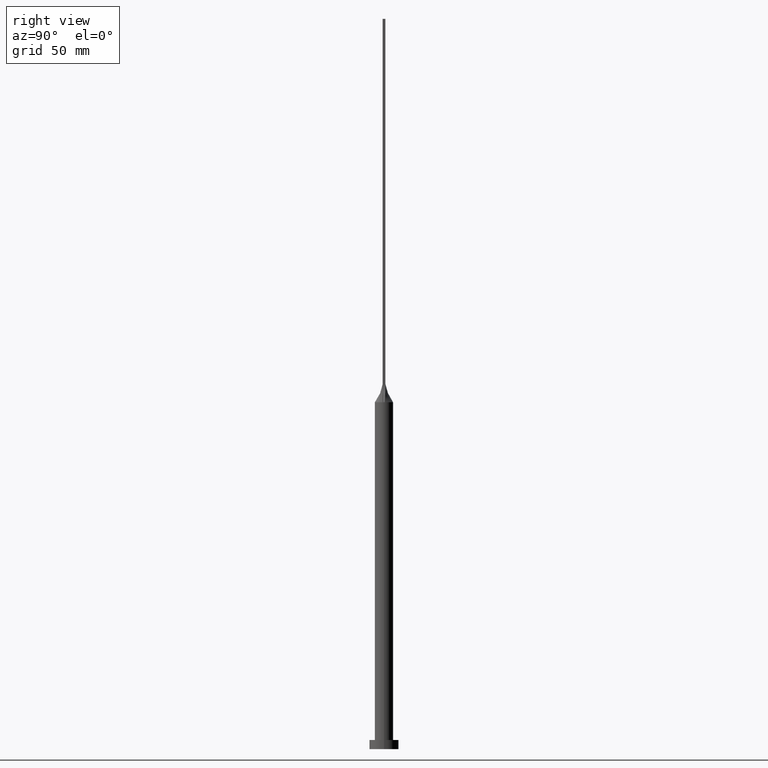
[diagram: clean part render]
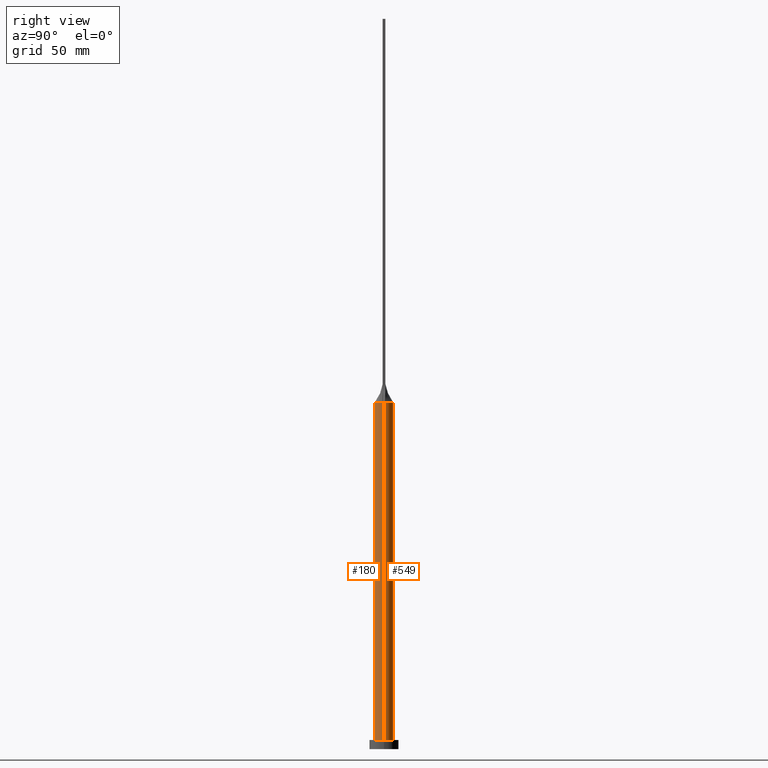
[diagram: same view with one multi-face feature highlighted, each face labeled with its STEP entity id]
A machine part, right view. The highlighted faces form ONE feature: a constant-radius fillet chain: 2 tangent blend faces with common blend radius 5 mm. The faces share edges in the B-rep.
Their STEP definitions:
[1] entity #180 (Cylinder):
#29 = ORIENTED_EDGE ( 'NONE', *, *, #454, .F. ) ;
#42 = DIRECTION ( 'NONE',  ( 0.000000000000000000, 0.000000000000000000, 1.000000000000000000 ) ) ;
#44 = CARTESIAN_POINT ( 'NONE',  ( -4.999812818728077701, -1.193032336741890821E-15, 190.0000000000000000 ) ) ;
#51 = EDGE_LOOP ( 'NONE', ( #390, #483, #29, #561, #427, #273 ) ) ;
#69 = AXIS2_PLACEMENT_3D ( 'NONE', #72, #334, #422 ) ;
#72 = CARTESIAN_POINT ( 'NONE',  ( 0.000000000000000000, 0.000000000000000000, 190.0000000000000000 ) ) ;
#101 = CARTESIAN_POINT ( 'NONE',  ( 4.999812818728077701, 1.241126956226958231E-15, 190.0000000000000000 ) ) ;
#113 = CARTESIAN_POINT ( 'NONE',  ( 0.000000000000000000, 0.000000000000000000, 190.0000000000000000 ) ) ;
#115 = VERTEX_POINT ( 'NONE', #599 ) ;
#119 = VERTEX_POINT ( 'NONE', #161 ) ;
#121 = CYLINDRICAL_SURFACE ( 'NONE', #69, 5.000000000000000000 ) ;
#123 = DIRECTION ( 'NONE',  ( 0.000000000000000000, 0.000000000000000000, 1.000000000000000000 ) ) ;
#161 = CARTESIAN_POINT ( 'NONE',  ( 4.938833698301754893, -0.7798158709413661738, 190.0000000000000000 ) ) ;
#168 = CIRCLE ( 'NONE', #289, 5.000000000000000000 ) ;
#175 = VERTEX_POINT ( 'NONE', #321 ) ;
#180 = ADVANCED_FACE ( 'NONE', ( #182 ), #121, .T. ) ;
#182 = FACE_OUTER_BOUND ( 'NONE', #51, .T. ) ;
#212 = VECTOR ( 'NONE', #448, 1000.000000000000000 ) ;
#227 = EDGE_CURVE ( 'NONE', #115, #175, #520, .T. ) ;
#240 = DIRECTION ( 'NONE',  ( 1.000000000000000000, 2.664535259100375697E-15, 0.000000000000000000 ) ) ;
#241 = CARTESIAN_POINT ( 'NONE',  ( -4.938821632323166178, -0.7798139456827060112, 190.0000000000000000 ) ) ;
#245 = LINE ( 'NONE', #403, #212 ) ;
#250 = CIRCLE ( 'NONE', #316, 5.000000000000000000 ) ;
#273 = ORIENTED_EDGE ( 'NONE', *, *, #227, .T. ) ;
#276 = VERTEX_POINT ( 'NONE', #44 ) ;
#278 = VERTEX_POINT ( 'NONE', #241 ) ;
#282 = CARTESIAN_POINT ( 'NONE',  ( 0.000000000000000000, 0.000000000000000000, 190.0000000000000000 ) ) ;
#289 = AXIS2_PLACEMENT_3D ( 'NONE', #113, #324, #500 ) ;
#292 = DIRECTION ( 'NONE',  ( 0.000000000000000000, 0.000000000000000000, 1.000000000000000000 ) ) ;
#299 = DIRECTION ( 'NONE',  ( -0.000000000000000000, -0.000000000000000000, -1.000000000000000000 ) ) ;
#316 = AXIS2_PLACEMENT_3D ( 'NONE', #401, #42, #240 ) ;
#321 = CARTESIAN_POINT ( 'NONE',  ( 5.000000000000000000, 6.123233995736766282E-16, 5.000000000000000000 ) ) ;
#324 = DIRECTION ( 'NONE',  ( 0.000000000000000000, 0.000000000000000000, 1.000000000000000000 ) ) ;
#334 = DIRECTION ( 'NONE',  ( -0.000000000000000000, -0.000000000000000000, -1.000000000000000000 ) ) ;
#337 = CIRCLE ( 'NONE', #438, 5.000000000000000000 ) ;
#350 = LINE ( 'NONE', #439, #476 ) ;
#390 = ORIENTED_EDGE ( 'NONE', *, *, #566, .F. ) ;
#401 = CARTESIAN_POINT ( 'NONE',  ( 0.000000000000000000, 0.000000000000000000, 190.0000000000000000 ) ) ;
#403 = CARTESIAN_POINT ( 'NONE',  ( 5.000000000000000000, 6.123233995736766282E-16, 190.0000000000000000 ) ) ;
#421 = VERTEX_POINT ( 'NONE', #101 ) ;
#422 = DIRECTION ( 'NONE',  ( -1.000000000000000000, 0.000000000000000000, 0.000000000000000000 ) ) ;
#427 = ORIENTED_EDGE ( 'NONE', *, *, #601, .T. ) ;
#438 = AXIS2_PLACEMENT_3D ( 'NONE', #282, #292, #577 ) ;
#439 = CARTESIAN_POINT ( 'NONE',  ( -5.000000000000000000, 0.000000000000000000, 190.0000000000000000 ) ) ;
#448 = DIRECTION ( 'NONE',  ( -0.000000000000000000, -0.000000000000000000, -1.000000000000000000 ) ) ;
#454 = EDGE_CURVE ( 'NONE', #278, #119, #168, .T. ) ;
#476 = VECTOR ( 'NONE', #299, 1000.000000000000000 ) ;
#483 = ORIENTED_EDGE ( 'NONE', *, *, #519, .F. ) ;
#490 = AXIS2_PLACEMENT_3D ( 'NONE', #568, #123, #521 ) ;
#500 = DIRECTION ( 'NONE',  ( 1.000000000000000000, 0.000000000000000000, 0.000000000000000000 ) ) ;
#519 = EDGE_CURVE ( 'NONE', #119, #421, #250, .T. ) ;
#520 = CIRCLE ( 'NONE', #490, 5.000000000000000000 ) ;
#521 = DIRECTION ( 'NONE',  ( 1.000000000000000000, 0.000000000000000000, 0.000000000000000000 ) ) ;
#560 = EDGE_CURVE ( 'NONE', #276, #278, #337, .T. ) ;
#561 = ORIENTED_EDGE ( 'NONE', *, *, #560, .F. ) ;
#566 = EDGE_CURVE ( 'NONE', #421, #175, #245, .T. ) ;
#568 = CARTESIAN_POINT ( 'NONE',  ( 0.000000000000000000, 0.000000000000000000, 5.000000000000000000 ) ) ;
#577 = DIRECTION ( 'NONE',  ( 1.000000000000000000, 0.000000000000000000, 0.000000000000000000 ) ) ;
#599 = CARTESIAN_POINT ( 'NONE',  ( -5.000000000000000000, 0.000000000000000000, 5.000000000000000000 ) ) ;
#601 = EDGE_CURVE ( 'NONE', #276, #115, #350, .T. ) ;
[2] entity #549 (Cylinder):
#3 = CARTESIAN_POINT ( 'NONE',  ( 2.643217737595826566, 4.256483892511437439, 189.9999999999999432 ) ) ;
#7 = CARTESIAN_POINT ( 'NONE',  ( -2.643217737595827455, 4.256483892511438327, 189.9999999999999716 ) ) ;
#28 = CARTESIAN_POINT ( 'NONE',  ( 4.874625637456157179, 1.186344398896585606, 190.0000000000000853 ) ) ;
#37 = AXIS2_PLACEMENT_3D ( 'NONE', #455, #406, #254 ) ;
#44 = CARTESIAN_POINT ( 'NONE',  ( -4.999812818728077701, -1.193032336741890821E-15, 190.0000000000000000 ) ) ;
#52 = CARTESIAN_POINT ( 'NONE',  ( -1.400150253878312823, 4.812847332616943419, 189.9999999999999716 ) ) ;
#57 = CARTESIAN_POINT ( 'NONE',  ( 4.332026455536839293, 2.547220758687718689, 190.0000000000001137 ) ) ;
#63 = CIRCLE ( 'NONE', #377, 5.000000000000000000 ) ;
#66 = B_SPLINE_CURVE_WITH_KNOTS ( 'NONE', 3,
 ( #597, #28, #604, #57, #176, #335, #611, #3, #353, #244, #196, #526, #130, #535, #619, #52, #404, #83, #7, #493, #246, #198, #147, #392, #388, #484 ),
 .UNSPECIFIED., .F., .F.,
 ( 4, 2, 2, 2, 2, 2, 2, 2, 2, 2, 2, 2, 4 ),
 ( 0.000000000000000000, 0.1250000000000001388, 0.2500000000000002220, 0.3125000000000002776, 0.3750000000000002776, 0.4375000000000002776, 0.5000000000000002220, 0.5625000000000002220, 0.6250000000000001110, 0.6875000000000001110, 0.7500000000000001110, 0.8750000000000001110, 1.000000000000000000 ),
 .UNSPECIFIED. ) ;
#75 = CIRCLE ( 'NONE', #177, 5.000000000000000000 ) ;
#83 = CARTESIAN_POINT ( 'NONE',  ( -2.353781608410062010, 4.424438117685770777, 189.9999999999999716 ) ) ;
#84 = CARTESIAN_POINT ( 'NONE',  ( 0.000000000000000000, 0.000000000000000000, 5.000000000000000000 ) ) ;
#101 = CARTESIAN_POINT ( 'NONE',  ( 4.999812818728077701, 1.241126956226958231E-15, 190.0000000000000000 ) ) ;
#115 = VERTEX_POINT ( 'NONE', #599 ) ;
#130 = CARTESIAN_POINT ( 'NONE',  ( 0.3560391241594590972, 5.000000000000001776, 190.0000000000000284 ) ) ;
#147 = CARTESIAN_POINT ( 'NONE',  ( -4.332026455536841070, 2.547220758687717801, 190.0000000000000568 ) ) ;
#175 = VERTEX_POINT ( 'NONE', #321 ) ;
#176 = CARTESIAN_POINT ( 'NONE',  ( 4.029217956433126524, 3.021257902548482477, 190.0000000000001137 ) ) ;
#177 = AXIS2_PLACEMENT_3D ( 'NONE', #302, #252, #584 ) ;
#191 = ORIENTED_EDGE ( 'NONE', *, *, #247, .T. ) ;
#196 = CARTESIAN_POINT ( 'NONE',  ( 1.400150253878312823, 4.812847332616943419, 190.0000000000000284 ) ) ;
#198 = CARTESIAN_POINT ( 'NONE',  ( -4.029217956433124748, 3.021257902548482033, 190.0000000000000853 ) ) ;
#212 = VECTOR ( 'NONE', #448, 1000.000000000000000 ) ;
#244 = CARTESIAN_POINT ( 'NONE',  ( 1.732223102076450250, 4.702695359254404295, 190.0000000000000000 ) ) ;
#245 = LINE ( 'NONE', #403, #212 ) ;
#246 = CARTESIAN_POINT ( 'NONE',  ( -3.404830936252120299, 3.673931880027067720, 190.0000000000000853 ) ) ;
#247 = EDGE_CURVE ( 'NONE', #175, #115, #512, .T. ) ;
#252 = DIRECTION ( 'NONE',  ( 0.000000000000000000, 0.000000000000000000, 1.000000000000000000 ) ) ;
#254 = DIRECTION ( 'NONE',  ( -1.000000000000000000, 0.000000000000000000, 0.000000000000000000 ) ) ;
#275 = ORIENTED_EDGE ( 'NONE', *, *, #601, .F. ) ;
#276 = VERTEX_POINT ( 'NONE', #44 ) ;
#286 = DIRECTION ( 'NONE',  ( 0.000000000000000000, 0.000000000000000000, 1.000000000000000000 ) ) ;
#299 = DIRECTION ( 'NONE',  ( -0.000000000000000000, -0.000000000000000000, -1.000000000000000000 ) ) ;
#302 = CARTESIAN_POINT ( 'NONE',  ( 0.000000000000000000, 0.000000000000000000, 190.0000000000000000 ) ) ;
#321 = CARTESIAN_POINT ( 'NONE',  ( 5.000000000000000000, 6.123233995736766282E-16, 5.000000000000000000 ) ) ;
#327 = EDGE_CURVE ( 'NONE', #341, #276, #75, .T. ) ;
#335 = CARTESIAN_POINT ( 'NONE',  ( 3.404830936252119411, 3.673931880027066388, 190.0000000000000284 ) ) ;
#341 = VERTEX_POINT ( 'NONE', #620 ) ;
#350 = LINE ( 'NONE', #439, #476 ) ;
#353 = CARTESIAN_POINT ( 'NONE',  ( 2.353781608410062454, 4.424438117685770777, 190.0000000000000284 ) ) ;
#356 = FACE_OUTER_BOUND ( 'NONE', #470, .T. ) ;
#377 = AXIS2_PLACEMENT_3D ( 'NONE', #465, #414, #419 ) ;
#388 = CARTESIAN_POINT ( 'NONE',  ( -4.874625637456156291, 1.186344398896586716, 190.0000000000000000 ) ) ;
#392 = CARTESIAN_POINT ( 'NONE',  ( -4.753727492665067444, 1.629988260829202007, 190.0000000000001137 ) ) ;
#396 = VERTEX_POINT ( 'NONE', #536 ) ;
#403 = CARTESIAN_POINT ( 'NONE',  ( 5.000000000000000000, 6.123233995736766282E-16, 190.0000000000000000 ) ) ;
#404 = CARTESIAN_POINT ( 'NONE',  ( -1.732223102076449806, 4.702695359254402518, 190.0000000000000000 ) ) ;
#406 = DIRECTION ( 'NONE',  ( -0.000000000000000000, -0.000000000000000000, -1.000000000000000000 ) ) ;
#414 = DIRECTION ( 'NONE',  ( 0.000000000000000000, 0.000000000000000000, 1.000000000000000000 ) ) ;
#419 = DIRECTION ( 'NONE',  ( 1.000000000000000000, 0.000000000000000000, 0.000000000000000000 ) ) ;
#421 = VERTEX_POINT ( 'NONE', #101 ) ;
#423 = EDGE_CURVE ( 'NONE', #421, #396, #63, .T. ) ;
#439 = CARTESIAN_POINT ( 'NONE',  ( -5.000000000000000000, 0.000000000000000000, 190.0000000000000000 ) ) ;
#447 = DIRECTION ( 'NONE',  ( 1.000000000000000000, 0.000000000000000000, 0.000000000000000000 ) ) ;
#448 = DIRECTION ( 'NONE',  ( -0.000000000000000000, -0.000000000000000000, -1.000000000000000000 ) ) ;
#449 = ORIENTED_EDGE ( 'NONE', *, *, #423, .F. ) ;
#455 = CARTESIAN_POINT ( 'NONE',  ( 0.000000000000000000, 0.000000000000000000, 190.0000000000000000 ) ) ;
#465 = CARTESIAN_POINT ( 'NONE',  ( 0.000000000000000000, 0.000000000000000000, 190.0000000000000000 ) ) ;
#469 = AXIS2_PLACEMENT_3D ( 'NONE', #84, #286, #447 ) ;
#470 = EDGE_LOOP ( 'NONE', ( #449, #605, #191, #275, #618, #612 ) ) ;
#475 = EDGE_CURVE ( 'NONE', #396, #341, #66, .T. ) ;
#476 = VECTOR ( 'NONE', #299, 1000.000000000000000 ) ;
#484 = CARTESIAN_POINT ( 'NONE',  ( -4.938831943662458812, 0.7798155886440081286, 190.0000000000000000 ) ) ;
#493 = CARTESIAN_POINT ( 'NONE',  ( -3.168723755431092748, 3.881165404529570484, 189.9999999999999147 ) ) ;
#496 = CYLINDRICAL_SURFACE ( 'NONE', #37, 5.000000000000000000 ) ;
#512 = CIRCLE ( 'NONE', #469, 5.000000000000000000 ) ;
#526 = CARTESIAN_POINT ( 'NONE',  ( 0.7119876437238013001, 4.961551549233180758, 190.0000000000000284 ) ) ;
#535 = CARTESIAN_POINT ( 'NONE',  ( -0.3560391241594593192, 5.000000000000000000, 190.0000000000000284 ) ) ;
#536 = CARTESIAN_POINT ( 'NONE',  ( 4.938814826645345768, 0.7798128673650538412, 190.0000000000000000 ) ) ;
#549 = ADVANCED_FACE ( 'NONE', ( #356 ), #496, .T. ) ;
#566 = EDGE_CURVE ( 'NONE', #421, #175, #245, .T. ) ;
#584 = DIRECTION ( 'NONE',  ( 1.000000000000000000, 0.000000000000000000, 0.000000000000000000 ) ) ;
#597 = CARTESIAN_POINT ( 'NONE',  ( 4.938814826645345768, 0.7798128673650538412, 190.0000000000000000 ) ) ;
#599 = CARTESIAN_POINT ( 'NONE',  ( -5.000000000000000000, 0.000000000000000000, 5.000000000000000000 ) ) ;
#601 = EDGE_CURVE ( 'NONE', #276, #115, #350, .T. ) ;
#604 = CARTESIAN_POINT ( 'NONE',  ( 4.753727492665065668, 1.629988260829201563, 190.0000000000000853 ) ) ;
#605 = ORIENTED_EDGE ( 'NONE', *, *, #566, .T. ) ;
#611 = CARTESIAN_POINT ( 'NONE',  ( 3.168723755431093192, 3.881165404529570040, 189.9999999999999432 ) ) ;
#612 = ORIENTED_EDGE ( 'NONE', *, *, #475, .F. ) ;
#618 = ORIENTED_EDGE ( 'NONE', *, *, #327, .F. ) ;
#619 = CARTESIAN_POINT ( 'NONE',  ( -0.7119876437238006339, 4.961551549233178982, 190.0000000000000568 ) ) ;
#620 = CARTESIAN_POINT ( 'NONE',  ( -4.938831943662458812, 0.7798155886440081286, 190.0000000000000000 ) ) ;